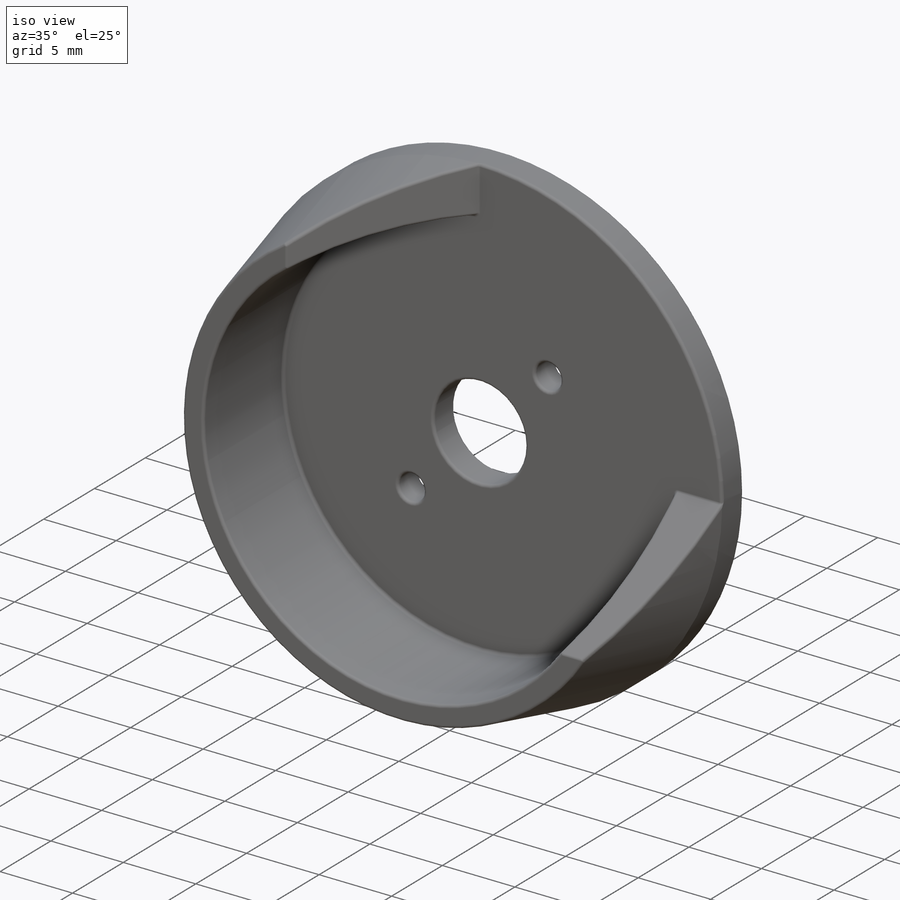
[diagram: iso view]
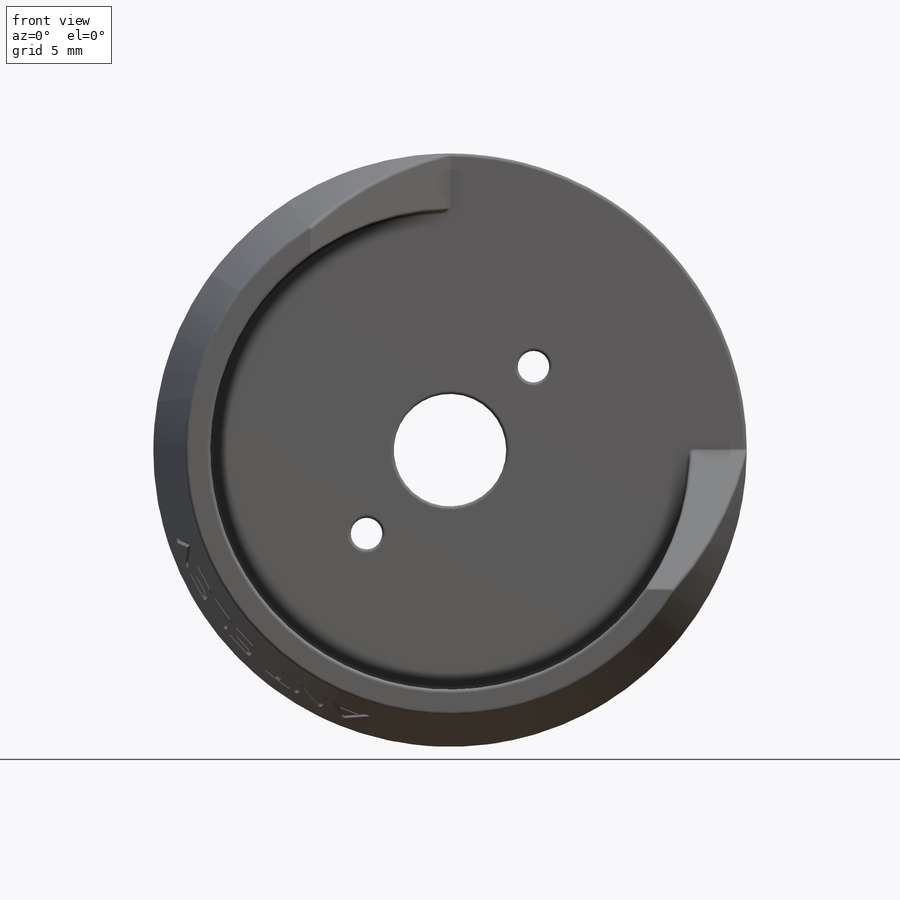
[diagram: front view]
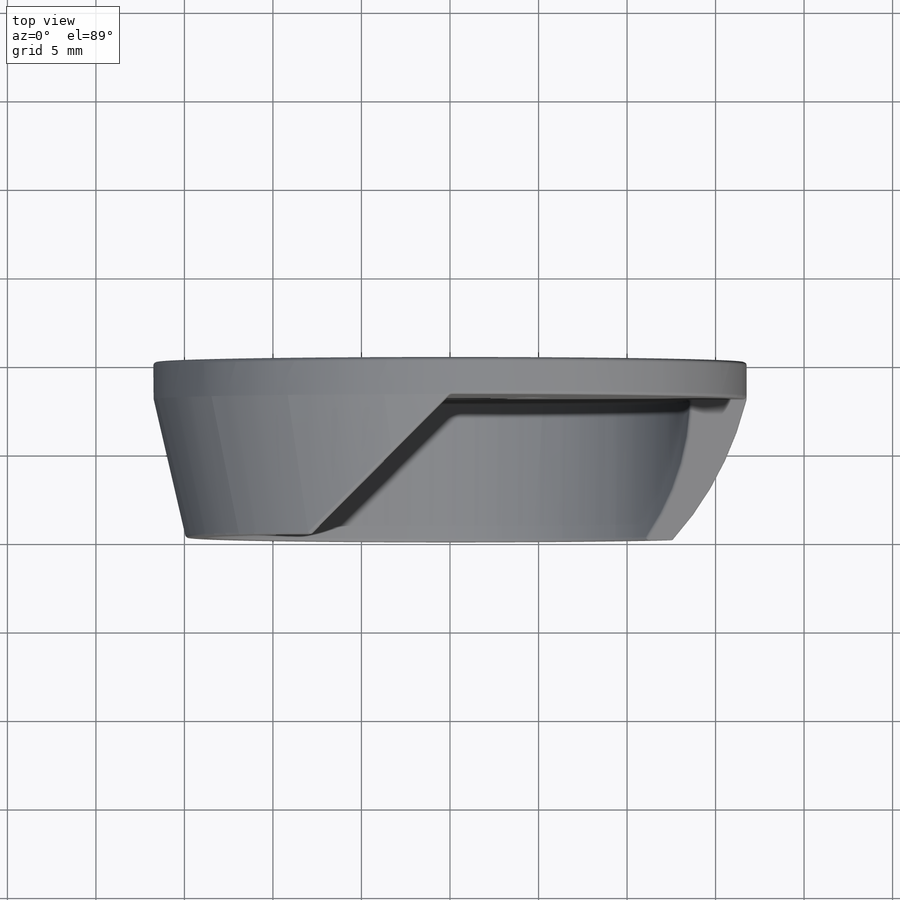
[diagram: top view]
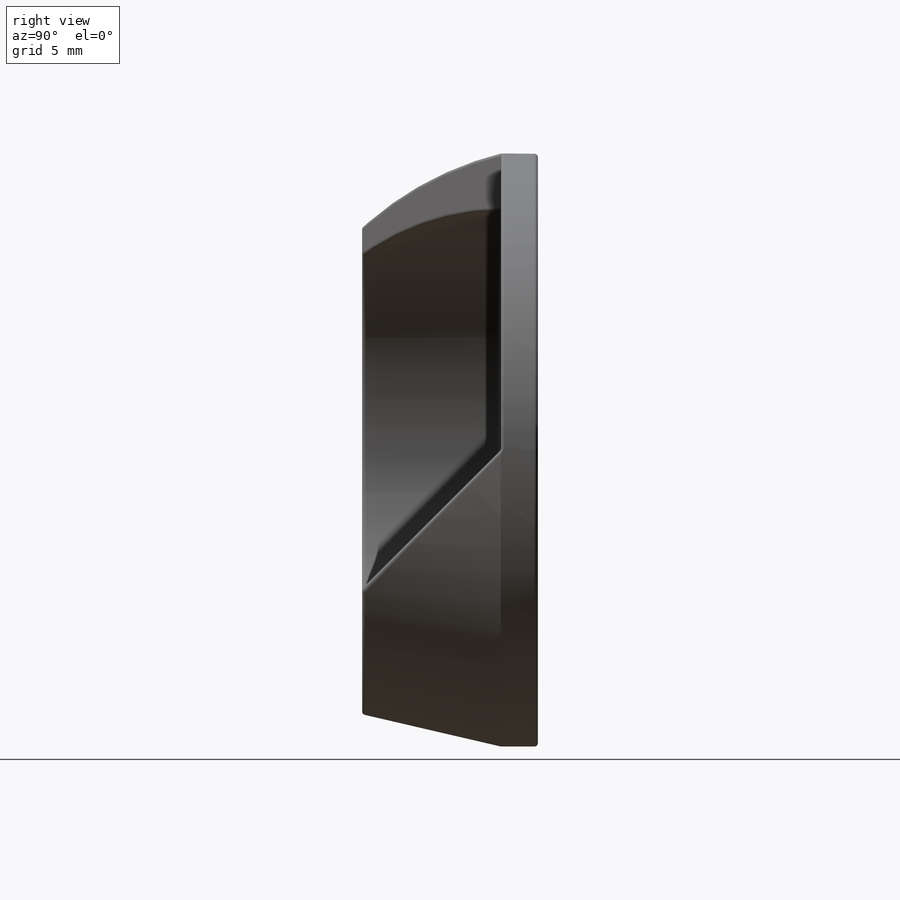
[diagram: right view]
SOLIDWORKS PART (.sldprt)
format: sldprt  version: not decoded by parser v0  size: 707,584 bytes
history: native  units: mm
features: sketch x12, cut_extrude x5, fillet x5, plane x2, thread x2, material x1, extrude x1, hole x1 (+16 scaffold rows collapsed)
feature tree (45):
  scaffold x16  (default folders/planes/origin — collapsed)
  material  "Material <not specified>"
  sketch  "Sketch1"  dims[D1=33.5153mm]
  extrude  "Extrude1"  Depth=2.0955mm
  sketch  "Sketch5"
  plane  "Plane1"  Offset=7.8359mm
  sketch  "Sketch3"  dims[D1=29.845mm]
  sketch  "Sketch4"  dims[D1=27.0637mm]
  cut_extrude  "Extrude2"  [1 undecoded]
  sketch  "Sketch6"  dims[D1=6.35mm]
  cut_extrude  "Extrude3"  [1 undecoded]
  sketch  "Sketch8"  dims[c1.D1=~17.690127mm c2.D1=135.0deg]
  cut_extrude  "Extrude4"  [1 undecoded]
  sketch  "Sketch9"  dims[c1.D1=~11.860572mm c2.D1=135.0deg]
  cut_extrude  "Extrude5"  [1 undecoded]
  sketch  "Sketch10"  dims[D1=13.335mm]
  hole  "#2-56 Tapped Hole1"  Diameter=1.778mm Depth=2.0955mm
  sketch  "3DSketch1"
  sketch  "Sketch11"  dims[hole-wizard template sketch: 60 standard entries collapsed; hole parameters kept: c18.Thru Tap Drill Depth=2.0955mm]
  thread  "Hole Thread1"  Diameter=2.1844mm  [1 undecoded]
  thread  "Hole Thread2"  Diameter=2.1844mm  [1 undecoded]
  fillet  "Fillet1"  Radius=0.198437mm
  fillet  "Fillet2"  Radius=0.198437mm
  fillet  "Fillet3"  Radius=0.198437mm
  fillet  "Fillet4"  Radius=0.198437mm
  fillet  "Fillet5"  Radius=0.198437mm
  sketch  "3DSketch2"
  plane  "Plane2"
  sketch  "Sketch13"
  cut_extrude  "Extrude6"  Depth=0.198437mm
decode coverage: 18 of 26 modeling features carry decoded parameters
note: ~ marks probable driven/reference dimensions
note: 6 parameter values undecoded
summary: no parameter record found for 4 features
note: suppression state not decoded; provenance and decode notes live in map.json
